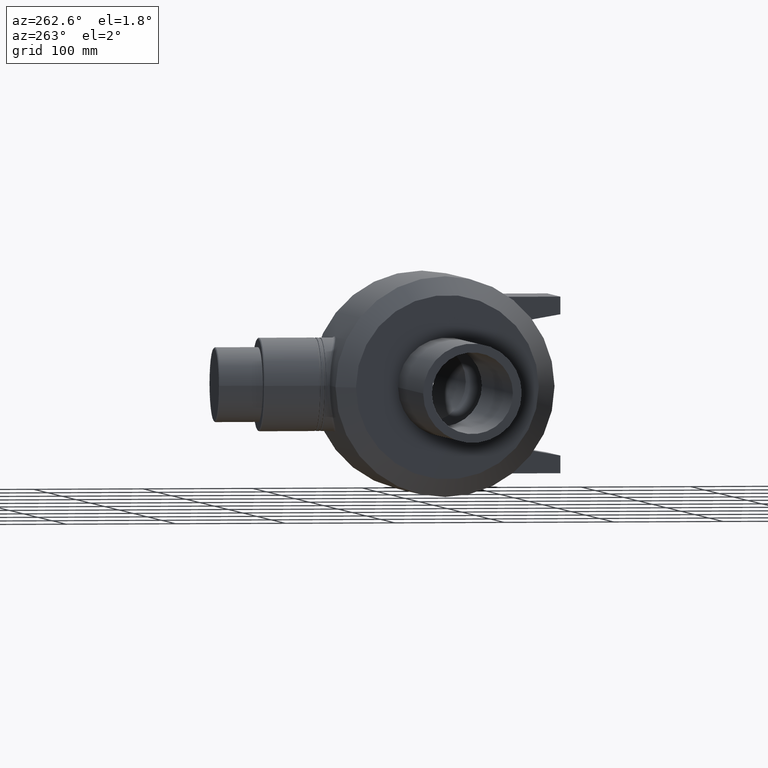
[diagram: clean part render]
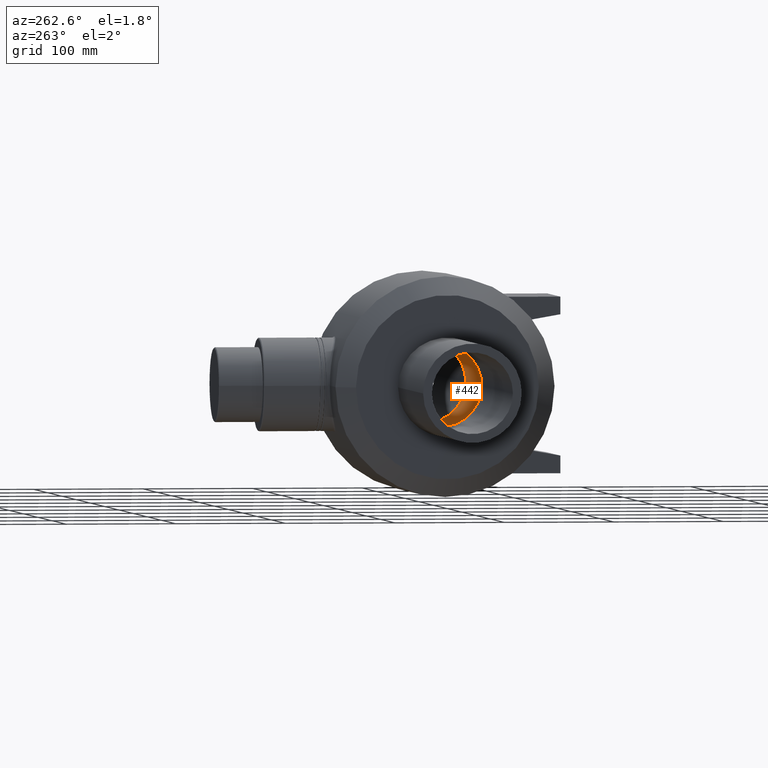
[diagram: same view with one face highlighted and labeled with its STEP entity id]
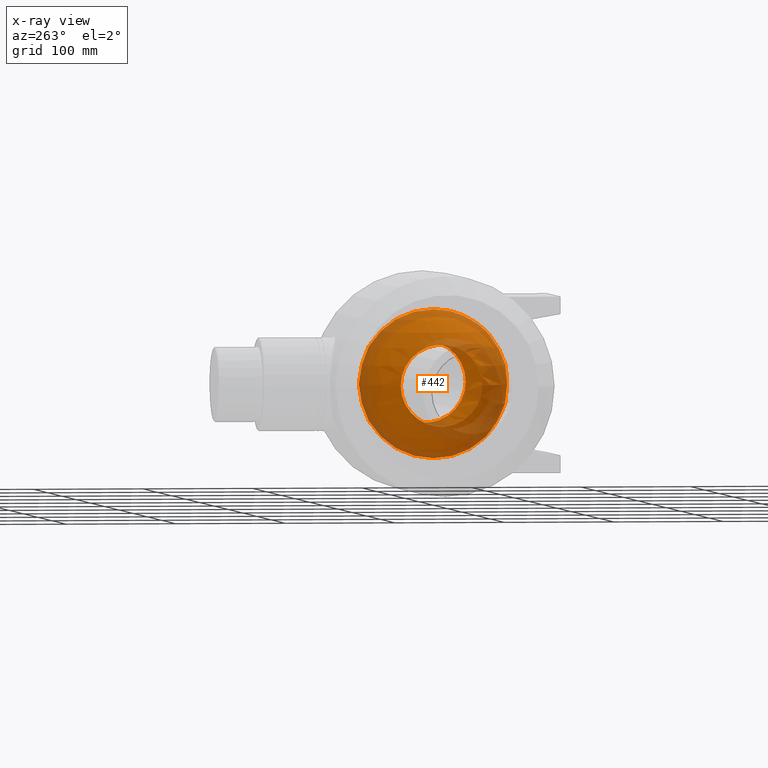
[diagram: x-ray of the same camera — body ghosted, the highlighted face saturated]
A machine part, auxiliary view. The second image highlights one B-rep face of the part: STEP entity #442.
The next image is the same camera in x-ray: the body ghosted, the highlighted face saturated — about 43% of this face is hidden behind the body in this view.
In plain terms, the highlighted spherical surface has radius 67.5 mm.
Its self-contained STEP definition (entity closure, byte-faithful):
#15=SPHERICAL_SURFACE('',#499,67.5);
#98=FACE_BOUND('',#193,.T.);
#99=FACE_BOUND('',#194,.T.);
#193=EDGE_LOOP('',(#404));
#194=EDGE_LOOP('',(#405));
#225=CIRCLE('',#498,37.);
#226=CIRCLE('',#500,37.);
#264=VERTEX_POINT('',#925);
#265=VERTEX_POINT('',#928);
#312=EDGE_CURVE('',#264,#264,#225,.T.);
#313=EDGE_CURVE('',#265,#265,#226,.T.);
#404=ORIENTED_EDGE('',*,*,#313,.F.);
#405=ORIENTED_EDGE('',*,*,#312,.T.);
#442=ADVANCED_FACE('',(#98,#99),#15,.F.);
#498=AXIS2_PLACEMENT_3D('',#926,#628,#629);
#499=AXIS2_PLACEMENT_3D('',#927,#630,#631);
#500=AXIS2_PLACEMENT_3D('',#929,#632,#633);
#628=DIRECTION('center_axis',(1.,0.,0.));
#629=DIRECTION('ref_axis',(0.,0.,-1.));
#630=DIRECTION('center_axis',(6.12323399573677E-17,0.,1.));
#631=DIRECTION('ref_axis',(1.,0.,0.));
#632=DIRECTION('center_axis',(1.,0.,0.));
#633=DIRECTION('ref_axis',(0.,0.,-1.));
#925=CARTESIAN_POINT('',(56.455734872553,37.,0.));
#926=CARTESIAN_POINT('Origin',(56.4557348725531,0.,0.));
#927=CARTESIAN_POINT('Origin',(0.,0.,0.));
#928=CARTESIAN_POINT('',(-56.455734872553,37.,0.));
#929=CARTESIAN_POINT('Origin',(-56.455734872553,0.,0.));